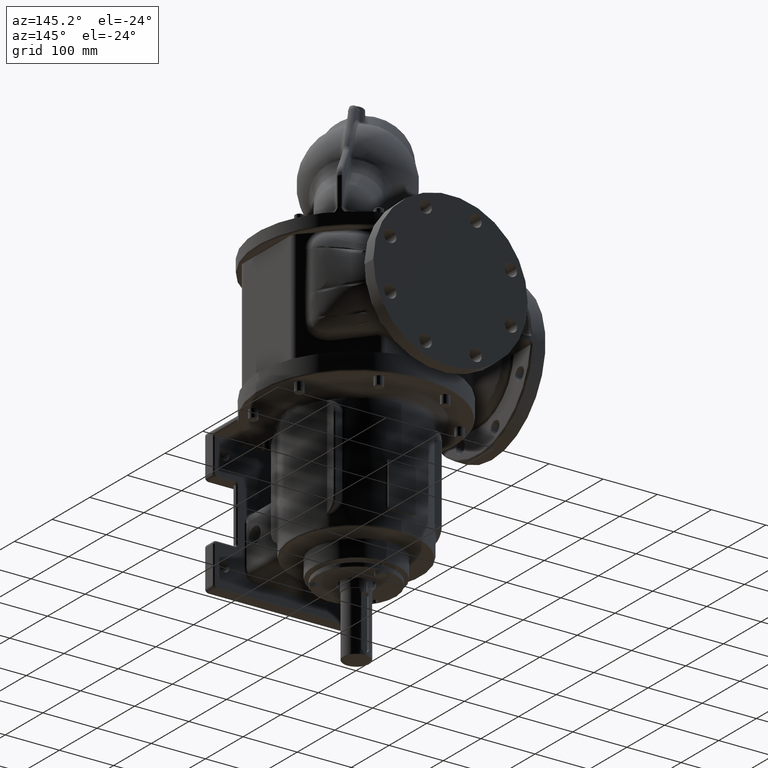
[diagram: clean part render]
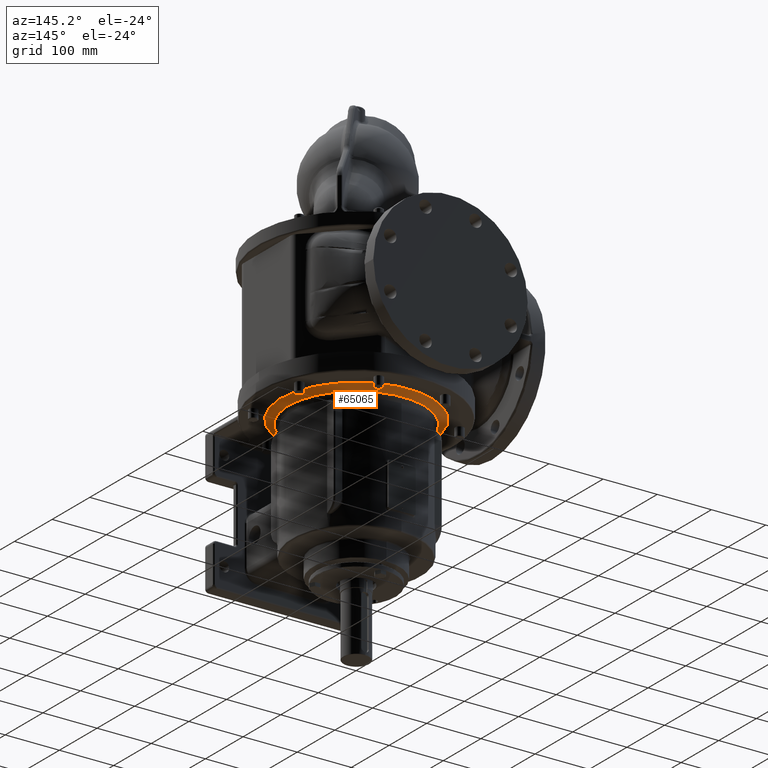
[diagram: same view with one face highlighted and labeled with its STEP entity id]
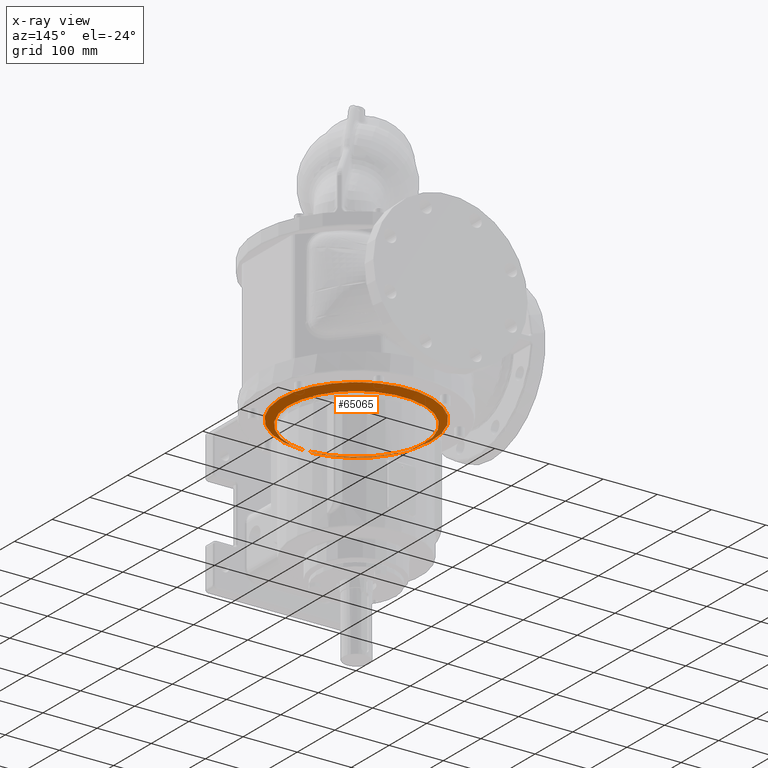
[diagram: x-ray of the same camera — body ghosted, the highlighted face saturated]
A machine part, auxiliary view. The second image highlights one B-rep face of the part: STEP entity #65065.
The next image is the same camera in x-ray: the body ghosted, the highlighted face saturated — about 6% of this face is hidden behind the body in this view.
In plain terms, the highlighted conical surface has half-angle 60 deg.
Its self-contained STEP definition (entity closure, byte-faithful):
#7142=CARTESIAN_POINT('',(7.905138339962E0,-1.237497847212E2,
-2.966025403897E1));
#7143=CARTESIAN_POINT('',(7.906239667564E0,-1.252213038878E2,
-2.881233246732E1));
#7144=CARTESIAN_POINT('',(7.908425131389E0,-1.282443254231E2,
-2.707028613876E1));
#7145=CARTESIAN_POINT('',(7.911620023014E0,-1.329856366833E2,
-2.433771014590E1));
#7146=CARTESIAN_POINT('',(7.913730746774E0,-1.363507391972E2,
-2.239805452963E1));
#7147=CARTESIAN_POINT('',(7.914775056176E0,-1.380788204064E2,
-2.140192378865E1));
#7149=CARTESIAN_POINT('',(0.E0,1.E0,-2.140192378865E1));
#7150=DIRECTION('',(0.E0,0.E0,1.E0));
#7151=DIRECTION('',(5.681662921610E-2,-9.983846306131E-1,0.E0));
#7152=AXIS2_PLACEMENT_3D('',#7149,#7150,#7151);
#7154=CARTESIAN_POINT('',(-7.914775056176E0,-1.380788204064E2,
-2.140192378865E1));
#7155=CARTESIAN_POINT('',(-7.913730736871E0,-1.363507228104E2,
-2.239806397560E1));
#7156=CARTESIAN_POINT('',(-7.911619998436E0,-1.329855984584E2,
-2.433773217791E1));
#7157=CARTESIAN_POINT('',(-7.908425105011E0,-1.282442879772E2,
-2.707030771838E1));
#7158=CARTESIAN_POINT('',(-7.906239655557E0,-1.252212878443E2,
-2.881234171189E1));
#7159=CARTESIAN_POINT('',(-7.905138339962E0,-1.237497847212E2,
-2.966025403897E1));
#7203=CARTESIAN_POINT('',(0.E0,1.E0,-2.966025403784E1));
#7204=DIRECTION('',(0.E0,0.E0,1.E0));
#7205=DIRECTION('',(6.324110671937E-2,-9.979982777645E-1,0.E0));
#7206=AXIS2_PLACEMENT_3D('',#7203,#7204,#7205);
#7208=CARTESIAN_POINT('',(-7.905138339962E0,-1.237497847212E2,
-2.966025403897E1));
#41467=VERTEX_POINT('',#7142);
#41468=VERTEX_POINT('',#7147);
#41472=VERTEX_POINT('',#7208);
#41476=VERTEX_POINT('',#7154);
#65052=CARTESIAN_POINT('',(0.E0,1.E0,-2.553108891325E1));
#65053=DIRECTION('',(0.E0,0.E0,1.E0));
#65054=DIRECTION('',(0.E0,-1.E0,0.E0));
#65055=AXIS2_PLACEMENT_3D('',#65052,#65053,#65054);
#65056=CONICAL_SURFACE('',#65055,1.321519237886E2,6.E1);
#65058=ORIENTED_EDGE('',*,*,#65057,.T.);
#65059=ORIENTED_EDGE('',*,*,#64991,.T.);
#65060=ORIENTED_EDGE('',*,*,#65042,.T.);
#65062=ORIENTED_EDGE('',*,*,#65061,.F.);
#65063=EDGE_LOOP('',(#65058,#65059,#65060,#65062));
#65064=FACE_OUTER_BOUND('',#65063,.F.);
#65065=ADVANCED_FACE('',(#65064),#65056,.T.);
#7148=B_SPLINE_CURVE_WITH_KNOTS('',3,(#7142,#7143,#7144,#7145,#7146,#7147),
.UNSPECIFIED.,.F.,.F.,(4,1,1,4),(0.E0,3.333333333333E-1,6.666666666667E-1,1.E0),
.UNSPECIFIED.);
#7153=CIRCLE('',#7152,1.393038475773E2);
#7160=B_SPLINE_CURVE_WITH_KNOTS('',3,(#7154,#7155,#7156,#7157,#7158,#7159),
.UNSPECIFIED.,.F.,.F.,(4,1,1,4),(0.E0,3.333333333333E-1,6.666666666667E-1,1.E0),
.UNSPECIFIED.);
#7207=CIRCLE('',#7206,1.25E2);
#64991=EDGE_CURVE('',#41468,#41476,#7153,.T.);
#65042=EDGE_CURVE('',#41476,#41472,#7160,.T.);
#65057=EDGE_CURVE('',#41467,#41468,#7148,.T.);
#65061=EDGE_CURVE('',#41467,#41472,#7207,.T.);